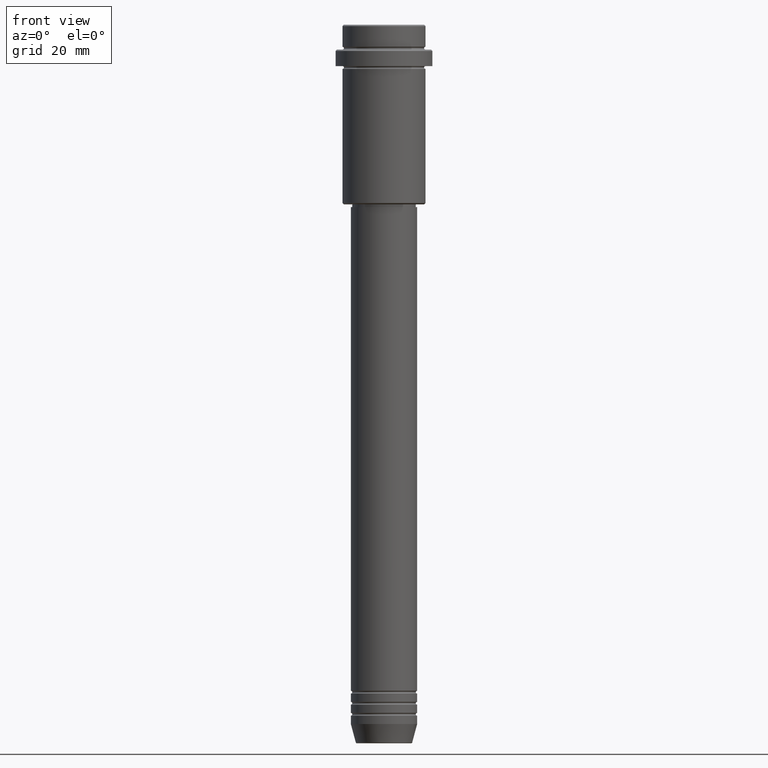
[diagram: clean part render]
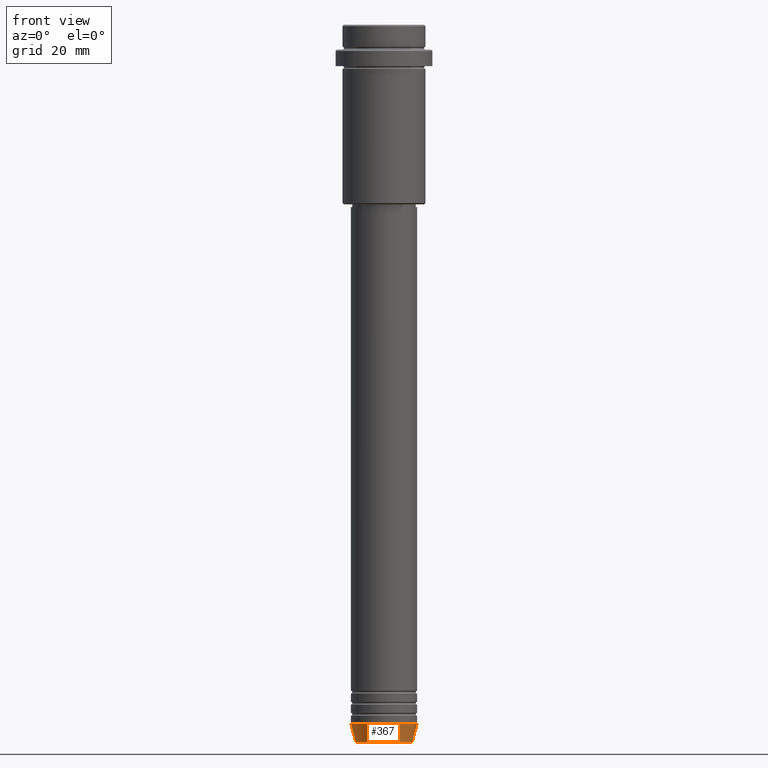
[diagram: same view with one face highlighted and labeled with its STEP entity id]
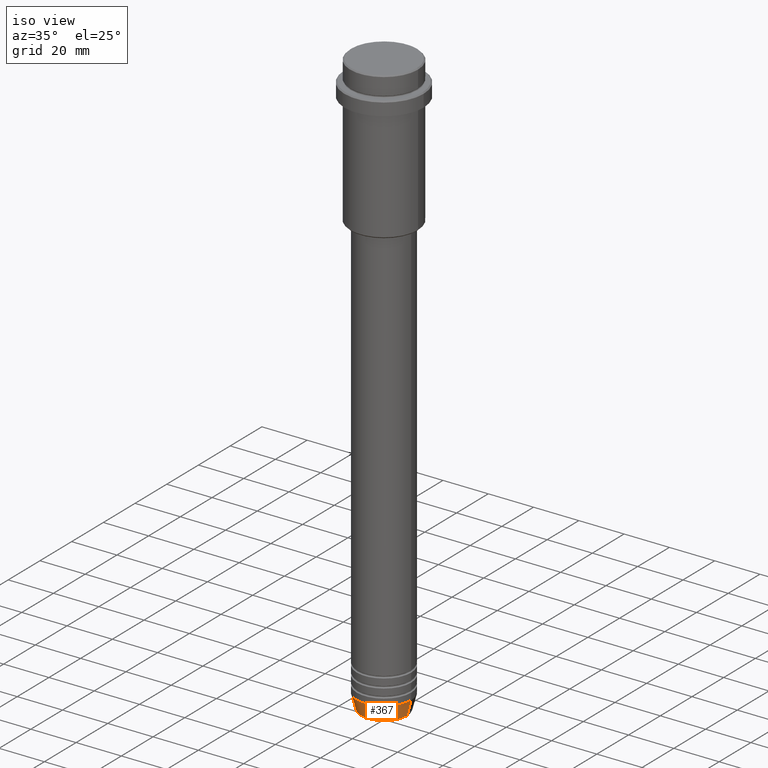
[diagram: same view with one face highlighted and labeled with its STEP entity id]
A machine part, front view. The second image highlights one B-rep face of the part: STEP entity #367.
A second angle (iso view) of the same face is appended — the face is thin or edge-on in the first view.
In plain terms, the highlighted conical surface has half-angle 15 deg.
Its self-contained STEP definition (entity closure, byte-faithful):
#57 = DIRECTION ( 'NONE',  ( -0.2588190451025213501, 3.169619151431772337E-17, 0.9659258262890680902 ) ) ;
#61 = VERTEX_POINT ( 'NONE', #1006 ) ;
#116 = AXIS2_PLACEMENT_3D ( 'NONE', #300, #1158, #291 ) ;
#135 = VECTOR ( 'NONE', #57, 1000.000000000000000 ) ;
#164 = VERTEX_POINT ( 'NONE', #497 ) ;
#237 = VERTEX_POINT ( 'NONE', #1141 ) ;
#263 = CARTESIAN_POINT ( 'NONE',  ( 0.000000000000000000, 0.000000000000000000, -253.0000000000000000 ) ) ;
#265 = EDGE_CURVE ( 'NONE', #459, #164, #284, .T. ) ;
#277 = DIRECTION ( 'NONE',  ( 0.2588190451025213501, 0.000000000000000000, 0.9659258262890680902 ) ) ;
#284 = LINE ( 'NONE', #479, #135 ) ;
#291 = DIRECTION ( 'NONE',  ( 1.000000000000000000, 0.000000000000000000, 0.000000000000000000 ) ) ;
#300 = CARTESIAN_POINT ( 'NONE',  ( 0.000000000000000000, 0.000000000000000000, -253.0000000000000000 ) ) ;
#313 = AXIS2_PLACEMENT_3D ( 'NONE', #263, #356, #807 ) ;
#356 = DIRECTION ( 'NONE',  ( -0.000000000000000000, -0.000000000000000000, 1.000000000000000000 ) ) ;
#367 = ADVANCED_FACE ( 'NONE', ( #1412 ), #1370, .T. ) ;
#380 = DIRECTION ( 'NONE',  ( -0.000000000000000000, -0.000000000000000000, 1.000000000000000000 ) ) ;
#397 = CARTESIAN_POINT ( 'NONE',  ( 0.000000000000000000, 0.000000000000000000, -259.6294095225512706 ) ) ;
#459 = VERTEX_POINT ( 'NONE', #786 ) ;
#479 = CARTESIAN_POINT ( 'NONE',  ( -12.00000000000000000, 1.469576158976823947E-15, -253.0000000000000000 ) ) ;
#497 = CARTESIAN_POINT ( 'NONE',  ( -12.00000000000000000, 1.469576158976823947E-15, -253.0000000000000000 ) ) ;
#520 = VECTOR ( 'NONE', #277, 1000.000000000000000 ) ;
#560 = EDGE_LOOP ( 'NONE', ( #604, #1148, #1009, #1129 ) ) ;
#604 = ORIENTED_EDGE ( 'NONE', *, *, #265, .F. ) ;
#786 = CARTESIAN_POINT ( 'NONE',  ( -10.22365507213719127, 1.360806402472382744E-15, -259.6294095225512706 ) ) ;
#807 = DIRECTION ( 'NONE',  ( 1.000000000000000000, 0.000000000000000000, 0.000000000000000000 ) ) ;
#981 = CIRCLE ( 'NONE', #1247, 10.22365507213719127 ) ;
#1006 = CARTESIAN_POINT ( 'NONE',  ( 12.00000000000000000, 0.000000000000000000, -253.0000000000000000 ) ) ;
#1009 = ORIENTED_EDGE ( 'NONE', *, *, #1329, .T. ) ;
#1051 = CARTESIAN_POINT ( 'NONE',  ( 12.00000000000000000, 0.000000000000000000, -253.0000000000000000 ) ) ;
#1129 = ORIENTED_EDGE ( 'NONE', *, *, #1209, .F. ) ;
#1141 = CARTESIAN_POINT ( 'NONE',  ( 10.22365507213719127, 0.000000000000000000, -259.6294095225512706 ) ) ;
#1148 = ORIENTED_EDGE ( 'NONE', *, *, #1317, .T. ) ;
#1158 = DIRECTION ( 'NONE',  ( -0.000000000000000000, -0.000000000000000000, 1.000000000000000000 ) ) ;
#1203 = CIRCLE ( 'NONE', #313, 12.00000000000000000 ) ;
#1209 = EDGE_CURVE ( 'NONE', #164, #61, #1203, .T. ) ;
#1247 = AXIS2_PLACEMENT_3D ( 'NONE', #397, #380, #1373 ) ;
#1317 = EDGE_CURVE ( 'NONE', #459, #237, #981, .T. ) ;
#1329 = EDGE_CURVE ( 'NONE', #237, #61, #1359, .T. ) ;
#1359 = LINE ( 'NONE', #1051, #520 ) ;
#1370 = CONICAL_SURFACE ( 'NONE', #116, 12.00000000000000000, 0.2617993877991500740 ) ;
#1373 = DIRECTION ( 'NONE',  ( 1.000000000000000000, 0.000000000000000000, 0.000000000000000000 ) ) ;
#1412 = FACE_OUTER_BOUND ( 'NONE', #560, .T. ) ;